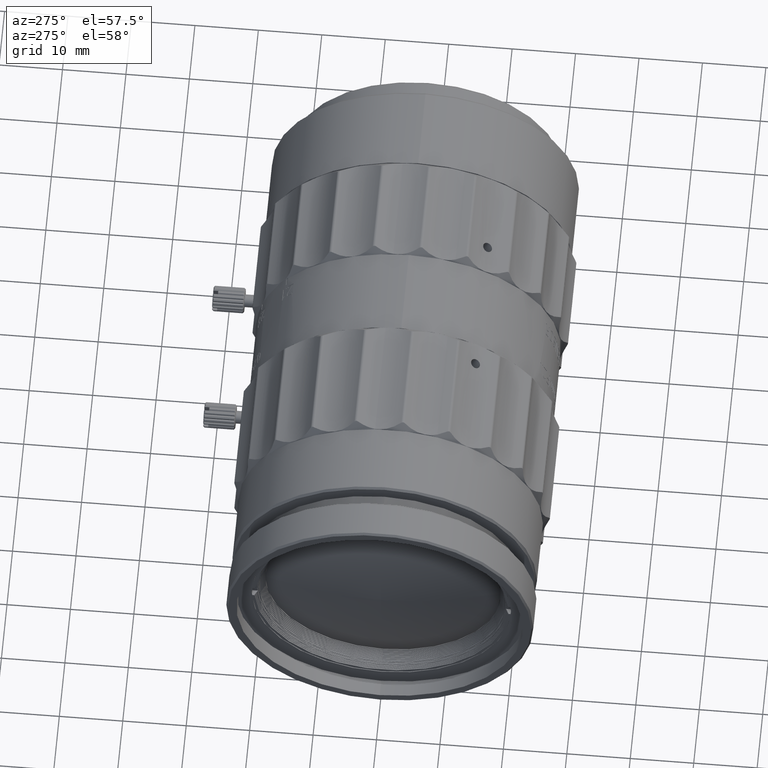
[diagram: clean part render]
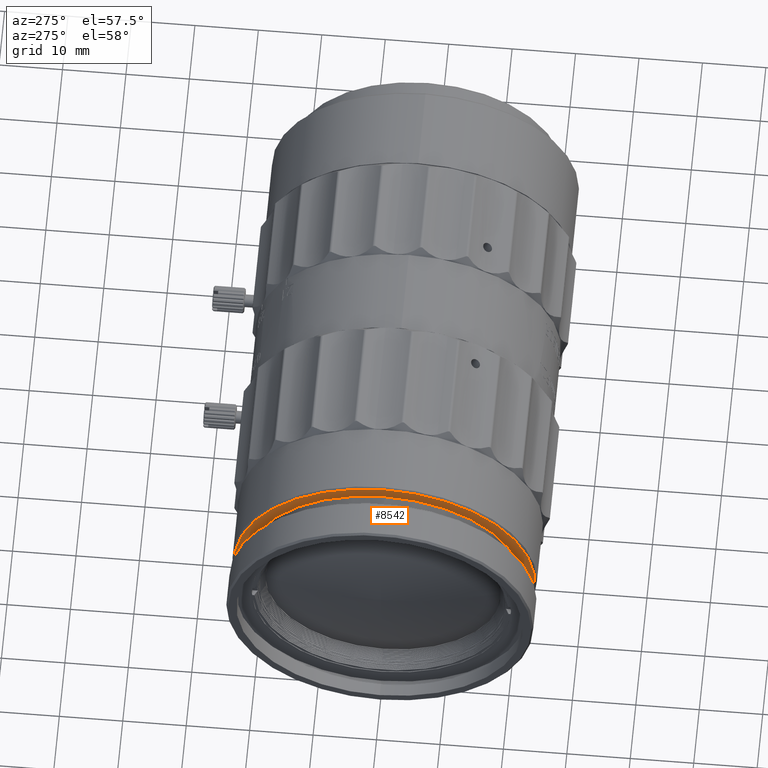
[diagram: same view with one face highlighted and labeled with its STEP entity id]
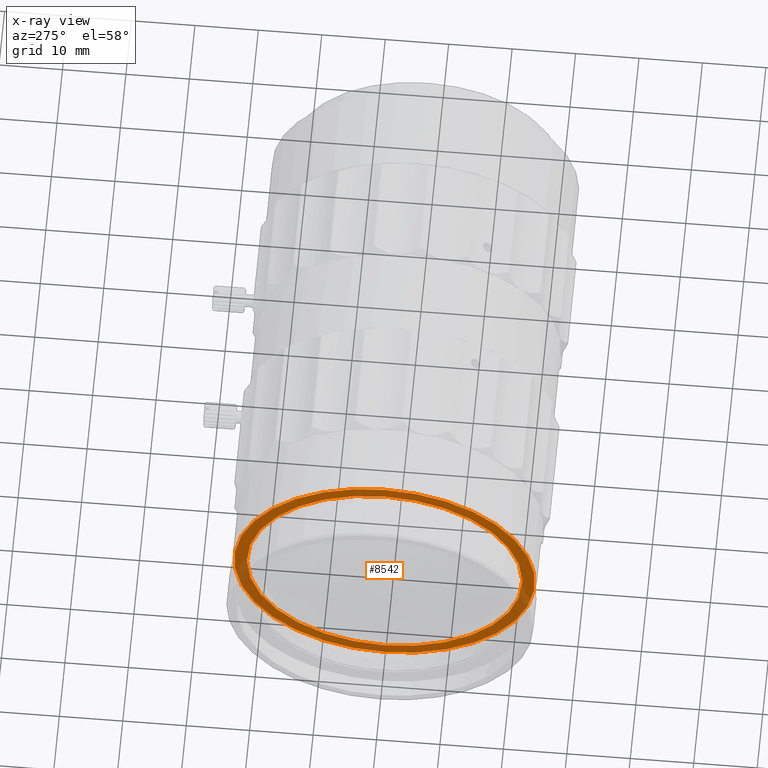
[diagram: x-ray of the same camera — body ghosted, the highlighted face saturated]
A machine part, auxiliary view. The second image highlights one B-rep face of the part: STEP entity #8542.
The next image is the same camera in x-ray: the body ghosted, the highlighted face saturated — about 7% of this face is hidden behind the body in this view.
In plain terms, the highlighted planar face has unit normal (1, 0, 0).
Its self-contained STEP definition (entity closure, byte-faithful):
#251 = DIRECTION ( 'NONE',  ( 1.000000000000000000, 0.000000000000000000, 0.000000000000000000 ) ) ;
#661 = EDGE_CURVE ( 'NONE', #82992, #86897, #36128, .T. ) ;
#2894 = EDGE_CURVE ( 'NONE', #14898, #71583, #42914, .T. ) ;
#3242 = DIRECTION ( 'NONE',  ( 0.000000000000000000, 0.000000000000000000, -1.000000000000000000 ) ) ;
#3256 = DIRECTION ( 'NONE',  ( 0.000000000000000000, 1.000000000000000000, 0.000000000000000000 ) ) ;
#4258 = ORIENTED_EDGE ( 'NONE', *, *, #661, .F. ) ;
#5190 = DIRECTION ( 'NONE',  ( 0.000000000000000000, 0.000000000000000000, -1.000000000000000000 ) ) ;
#7165 = AXIS2_PLACEMENT_3D ( 'NONE', #27714, #251, #69727 ) ;
#8542 = ADVANCED_FACE ( 'NONE', ( #21907, #55971 ), #48917, .F. ) ;
#10634 = CARTESIAN_POINT ( 'NONE',  ( 4.499999999998999911, 4.800630167329029821E-15, 23.69999999999999929 ) ) ;
#11409 = CIRCLE ( 'NONE', #7165, 23.69999999999999929 ) ;
#14898 = VERTEX_POINT ( 'NONE', #48881 ) ;
#19042 = AXIS2_PLACEMENT_3D ( 'NONE', #63917, #42245, #3256 ) ;
#19785 = DIRECTION ( 'NONE',  ( -1.000000000000000000, 0.000000000000000000, 0.000000000000000000 ) ) ;
#21907 = FACE_BOUND ( 'NONE', #28726, .T. ) ;
#27714 = CARTESIAN_POINT ( 'NONE',  ( 4.499999999998999911, 0.000000000000000000, 1.681205777448999820E-13 ) ) ;
#28726 = EDGE_LOOP ( 'NONE', ( #4258, #79057 ) ) ;
#30292 = DIRECTION ( 'NONE',  ( 1.000000000000000000, 0.000000000000000000, 0.000000000000000000 ) ) ;
#33408 = ORIENTED_EDGE ( 'NONE', *, *, #2894, .F. ) ;
#36128 = CIRCLE ( 'NONE', #55880, 21.69999999999999929 ) ;
#36330 = EDGE_CURVE ( 'NONE', #86897, #82992, #37027, .T. ) ;
#37027 = CIRCLE ( 'NONE', #86450, 21.69999999999999929 ) ;
#37821 = CARTESIAN_POINT ( 'NONE',  ( 4.499999999998999911, 0.000000000000000000, 1.681205777448999820E-13 ) ) ;
#38773 = EDGE_CURVE ( 'NONE', #71583, #14898, #11409, .T. ) ;
#40375 = EDGE_LOOP ( 'NONE', ( #33408, #44643 ) ) ;
#42245 = DIRECTION ( 'NONE',  ( 1.000000000000000000, 0.000000000000000000, 0.000000000000000000 ) ) ;
#42914 = CIRCLE ( 'NONE', #79591, 23.69999999999999929 ) ;
#44643 = ORIENTED_EDGE ( 'NONE', *, *, #38773, .F. ) ;
#44842 = CARTESIAN_POINT ( 'NONE',  ( 4.500000000000000000, 0.000000000000000000, 0.000000000000000000 ) ) ;
#48881 = CARTESIAN_POINT ( 'NONE',  ( 4.499999999998999911, 1.879847551395470107E-15, -23.69999999999999929 ) ) ;
#48917 = PLANE ( 'NONE',  #19042 ) ;
#52537 = CARTESIAN_POINT ( 'NONE',  ( 4.500000000000000000, 0.000000000000000000, 0.000000000000000000 ) ) ;
#55880 = AXIS2_PLACEMENT_3D ( 'NONE', #52537, #19785, #5190 ) ;
#55971 = FACE_OUTER_BOUND ( 'NONE', #40375, .T. ) ;
#57314 = DIRECTION ( 'NONE',  ( 0.000000000000000000, 0.000000000000000000, 1.000000000000000000 ) ) ;
#63917 = CARTESIAN_POINT ( 'NONE',  ( 4.500000000000000000, -24.64799999999999969, -24.64799999999999969 ) ) ;
#69727 = DIRECTION ( 'NONE',  ( 0.000000000000000000, 0.000000000000000000, 1.000000000000000000 ) ) ;
#71583 = VERTEX_POINT ( 'NONE', #10634 ) ;
#73867 = CARTESIAN_POINT ( 'NONE',  ( 4.500000000000000000, 1.328741777074875805E-15, -21.69999999999999929 ) ) ;
#76929 = CARTESIAN_POINT ( 'NONE',  ( 4.500000000000000000, -1.328741777074879947E-15, 21.69999999999999929 ) ) ;
#79057 = ORIENTED_EDGE ( 'NONE', *, *, #36330, .F. ) ;
#79591 = AXIS2_PLACEMENT_3D ( 'NONE', #37821, #30292, #57314 ) ;
#82992 = VERTEX_POINT ( 'NONE', #76929 ) ;
#83777 = DIRECTION ( 'NONE',  ( -1.000000000000000000, 0.000000000000000000, 0.000000000000000000 ) ) ;
#86450 = AXIS2_PLACEMENT_3D ( 'NONE', #44842, #83777, #3242 ) ;
#86897 = VERTEX_POINT ( 'NONE', #73867 ) ;